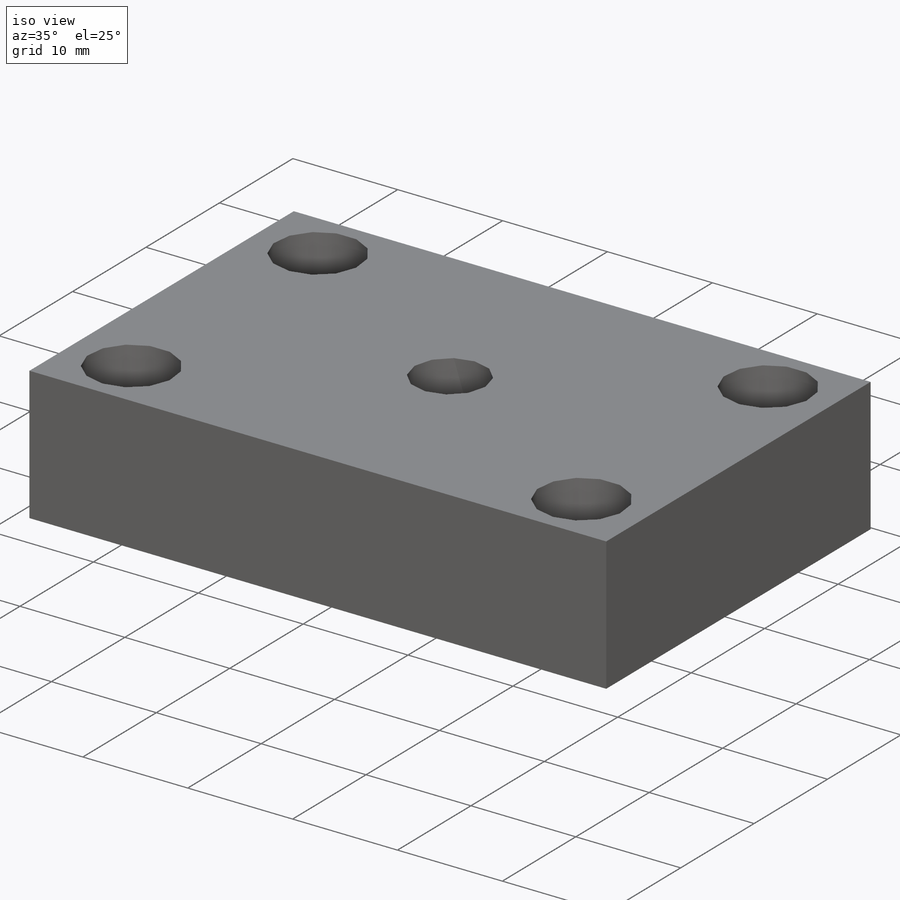
[diagram: iso view]
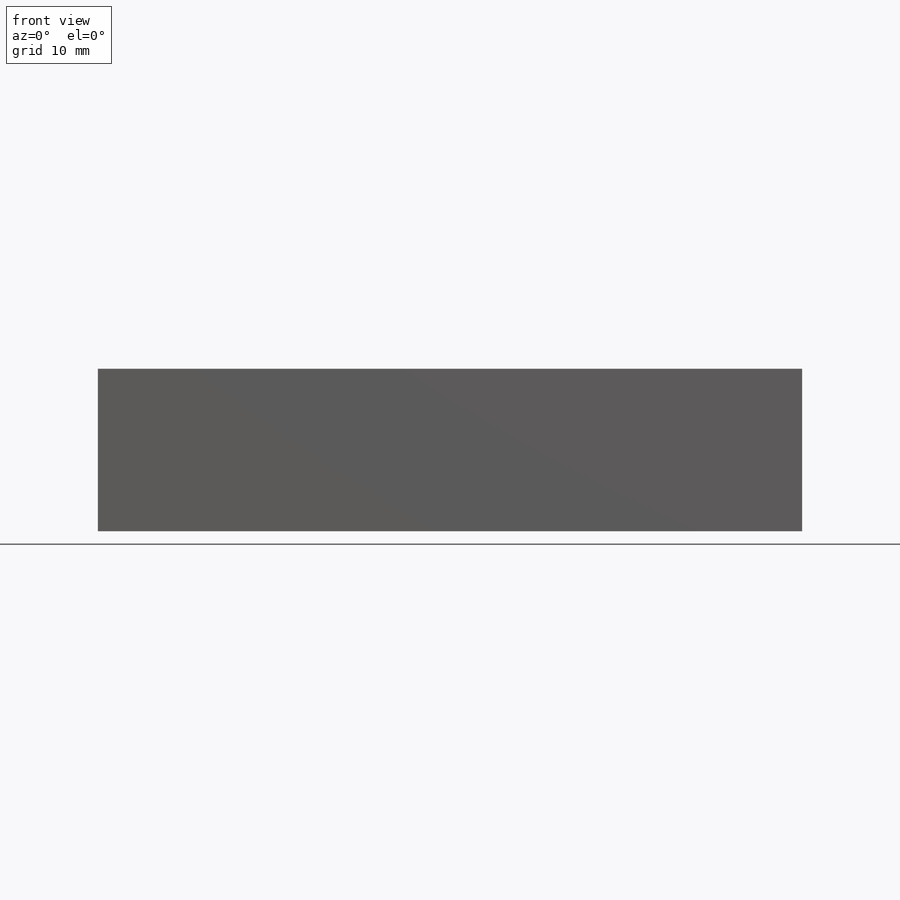
[diagram: front view]
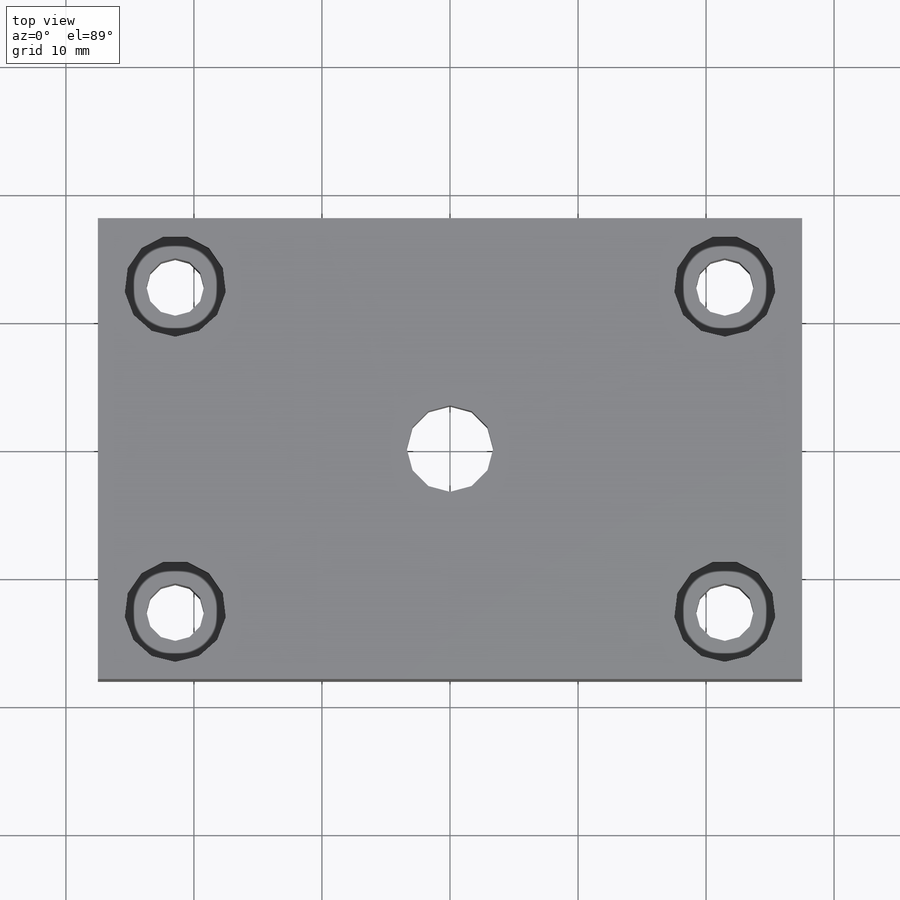
[diagram: top view]
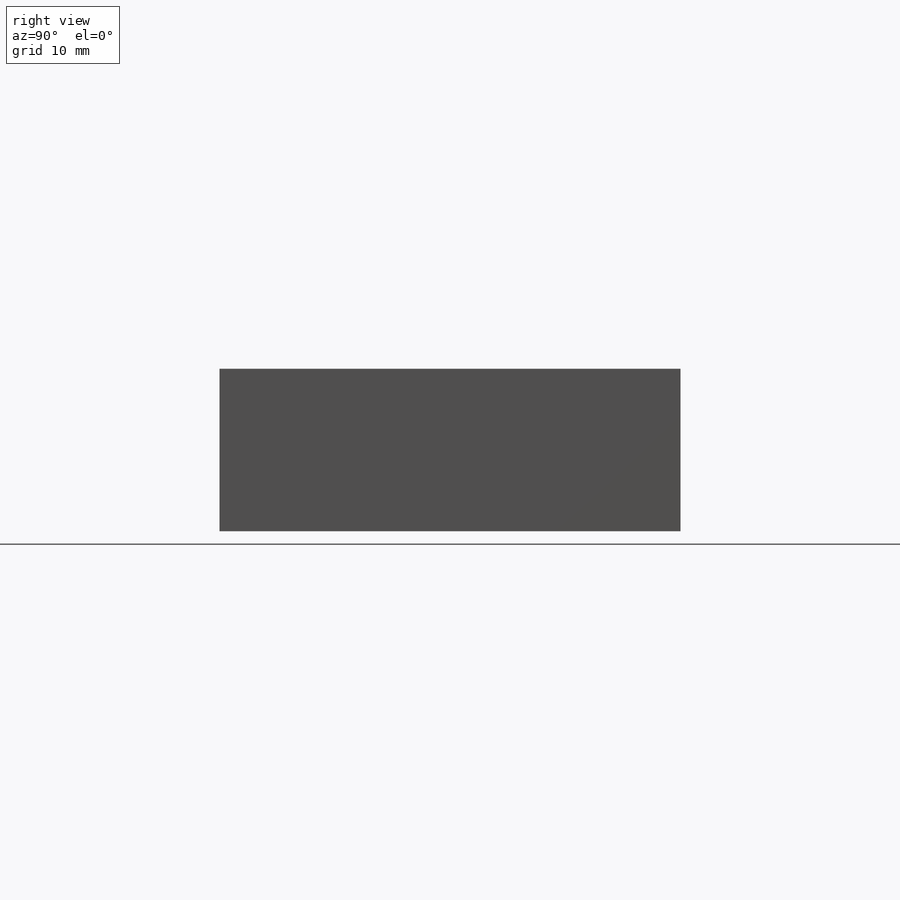
[diagram: right view]
SOLIDWORKS PART (.sldprt)
format: sldprt  version: not decoded by parser v0  size: 208,384 bytes
history: native  units: mm
features: sketch x5, hole x2, material x1, extrude x1 + 1 further entry (+10 scaffold rows collapsed)
feature tree (20):
  scaffold x10  (default folders/planes/origin — collapsed)
  material  "6061-T6 Al"
  "Origin"  ID=392984584
  sketch  "Sketch1"  dims[D1=55.0mm D2=36.0mm]
  extrude  "Boss-Extrude1"  Depth=12.7mm
  hole  "CBORE for #8 Socket Head Cap Screw1"  Diameter=4.4958mm Depth=12.7mm
  sketch  "Sketch3"  dims[D1=12.7mm D2=12.7mm D3=21.463mm D4=21.463mm]
  sketch  "Sketch2"  dims[hole-wizard template sketch: 41 standard entries collapsed; hole parameters kept: c12.Thru Hole Dia.=4.4958mm c12.Thru Hole Depth=12.7mm c12.C'Bore Dia.=7.9375mm c12.C'Bore Depth=4.1656mm]
  hole  "CBORE for 1/4 Socket Head Cap Screw1"  Diameter=6.7564mm Depth=12.7mm
  sketch  "Sketch7"
  sketch  "Sketch6"  dims[hole-wizard template sketch: 43 standard entries collapsed; hole parameters kept: c12.C'Bore Dia.=11.1125mm c12.C'Bore Depth=6.35mm]
decode coverage: 7 of 8 modeling features carry decoded parameters; 1 rows unclassified (native names shown)
note: ~ marks probable driven/reference dimensions
note: suppression state not decoded; provenance and decode notes live in map.json
